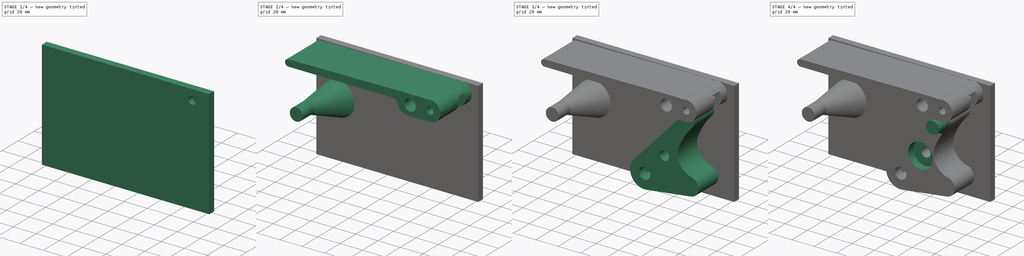
[diagram: build sequence overview — one tinted view per stage of 4, left to right]
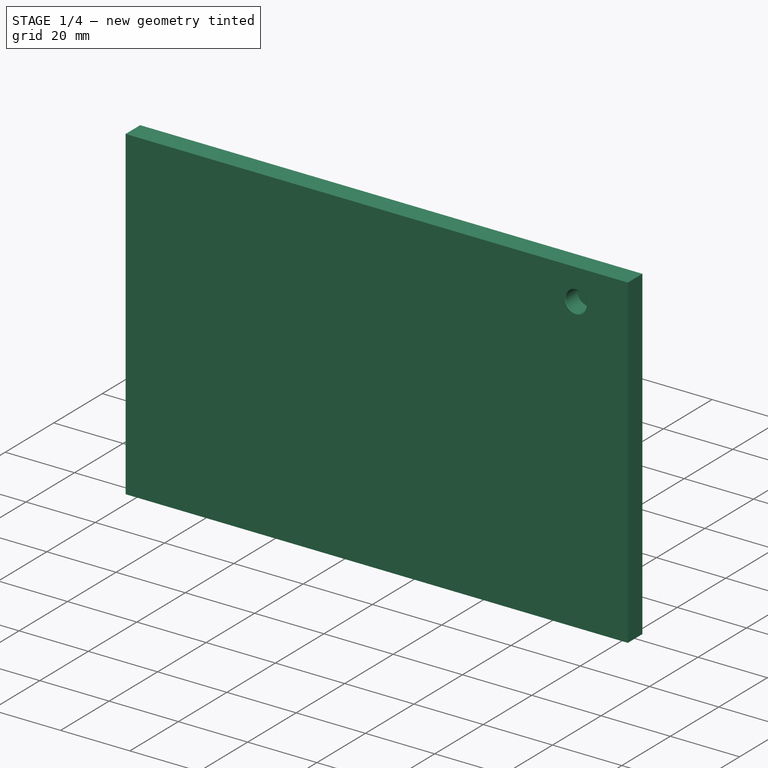
[diagram: stage 1 of 4 — iso view after this stage's code; geometry added in this stage tinted green]
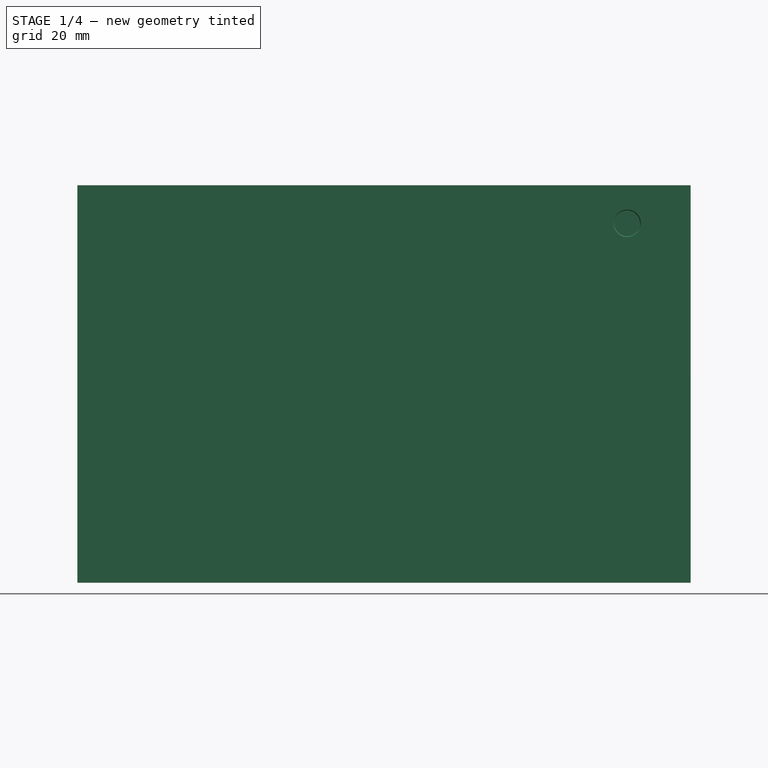
[diagram: stage 1 of 4 — front view after this stage's code; geometry added in this stage tinted green]
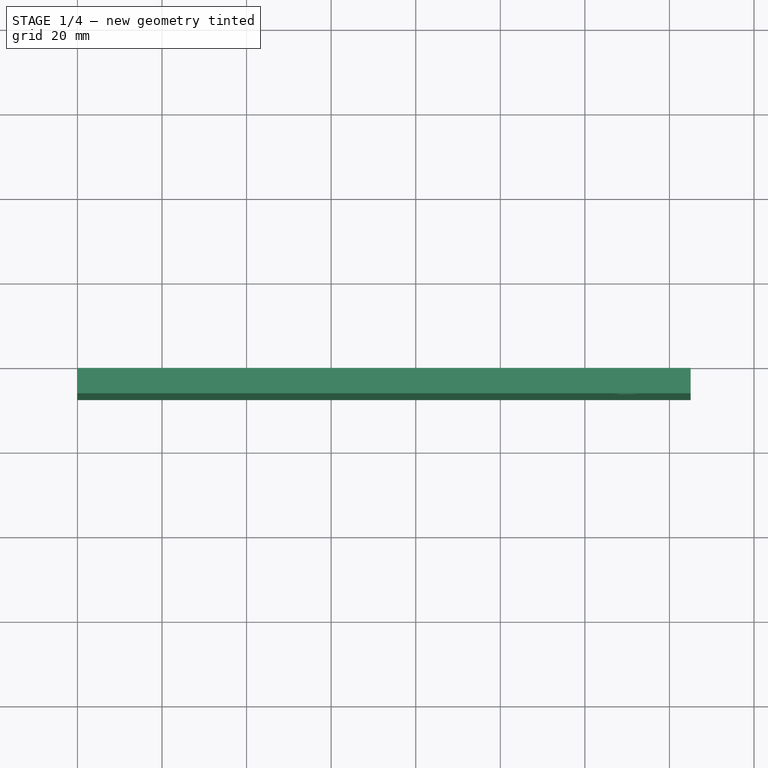
[diagram: stage 1 of 4 — top view after this stage's code; geometry added in this stage tinted green]
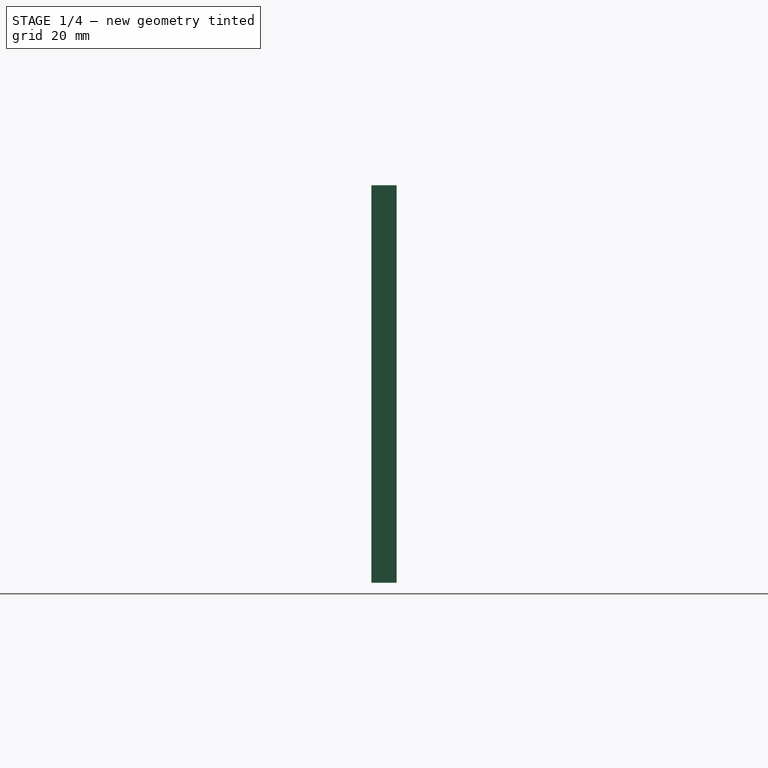
[diagram: stage 1 of 4 — right view after this stage's code; geometry added in this stage tinted green]
FCSTD DOCUMENT  (FreeCAD 0.22R37898 (Git))
Label: lever mechanism v5
License: All rights reserved
LicenseURL: http://en.wikipedia.org/wiki/All_rights_reserved
objects: Sketcher::SketchObject×12, PartDesign::Body×4, PartDesign::Pad×3, PartDesign::Pocket×3, PartDesign::AdditiveLoft×2, PartDesign::Mirrored×1, PartDesign::SubShapeBinder×1, PartDesign::Fillet×1, PartDesign::Hole×1
note: 38 computed .brp shape members not serialized (recipe doc carries the construction recipe); baked Part::Feature solids carry a one-line shape summary decoded from their .brp

FEATURE [Sketcher::SketchObject] Sketch  label="Disc sketch"
  AttachmentSupport = -> [XZ_Plane]
  FullyConstrained = false
  MapMode = 5
  Placement = pos=(0,0,0) rot=(1,0,0;1.5708rad)
  sketch-geometry (18):
    g0: ArcOfCircle CenterX=21.1335 CenterY=33.9614 CenterZ=0 NormalX=0 NormalY=0 NormalZ=1 AngleXU=0 Radius=5.75 StartAngle=5.53981 EndAngle=8.6814
    g1: LineSegment StartX=16.9004 StartY=37.8529 StartZ=0 EndX=-27.296 EndY=-10.2231 EndZ=0
    g2: Circle CenterX=0 CenterY=0 CenterZ=0 NormalX=0 NormalY=0 NormalZ=1 AngleXU=0 Radius=4.15
    g3: Circle CenterX=21.1335 CenterY=33.9614 CenterZ=0 NormalX=0 NormalY=0 NormalZ=1 AngleXU=0 Radius=5.75
    g4: LineSegment StartX=21.1335 StartY=33.9614 StartZ=0 EndX=-13.4804 EndY=-21.6629 EndZ=0
    g5: LineSegment StartX=21.1335 StartY=33.9614 StartZ=0 EndX=-80 EndY=0 EndZ=0
    g6: LineSegment StartX=-80 StartY=0 StartZ=0 EndX=0 EndY=0 EndZ=0
    g7: LineSegment StartX=-17.7255 StartY=-19.0212 StartZ=0 EndX=12.0007 EndY=49.8363 EndZ=0
    g8: LineSegment StartX=30 StartY=50 StartZ=0 EndX=-89.995 EndY=48.9084 EndZ=0
    g9: LineSegment StartX=-13.4804 StartY=-21.6629 StartZ=0 EndX=-17.7255 EndY=-19.0212 EndZ=0
    g10: Circle CenterX=0 CenterY=0 CenterZ=0 NormalX=0 NormalY=0 NormalZ=1 AngleXU=0 Radius=26
    g11: GeomPoint X=24.1714 Y=38.8433 Z=0
    g12: Circle CenterX=-17.7255 CenterY=-19.0212 CenterZ=0 NormalX=0 NormalY=0 NormalZ=1 AngleXU=0 Radius=5.1
    g13: ArcOfCircle CenterX=22.5853 CenterY=-18.8224 CenterZ=0 NormalX=0 NormalY=0 NormalZ=1 AngleXU=0 Radius=8 StartAngle=4.84168 EndAngle=7.6342
    g14: ArcOfCircle CenterX=-17.7255 CenterY=-19.0212 CenterZ=0 NormalX=0 NormalY=0 NormalZ=1 AngleXU=0 Radius=13 StartAngle=2.39821 EndAngle=4.84168
    g15: LineSegment StartX=-16.0495 StartY=-31.9127 StartZ=0 EndX=23.6167 EndY=-26.7556 EndZ=0
    g16: ArcOfCircle CenterX=27.8221 CenterY=4.6206 CenterZ=0 NormalX=0 NormalY=0 NormalZ=1 AngleXU=0 Radius=16.0208 StartAngle=2.74728 EndAngle=4.49261
    g17: ArcOfCircle CenterX=73.9111 CenterY=-14.5572 CenterZ=0 NormalX=0 NormalY=0 NormalZ=1 AngleXU=0 Radius=65.9405 StartAngle=2.39821 EndAngle=2.74728
  constraints (50):
    c: Coincident(g2,g-1)
    c: Diameter(g2) = 8.3
    c: Distance(g3,g2) = 40
    c: Tangent(g1,g0) = -1.5708
    c: Coincident(g4,g0)
    c: PointOnObject(g2,g4)
    c: Coincident(g5,g3)
    c: Coincident(g6,g5)
    c: Coincident(g6,g2)
    c: Distance(g6) = 80  'spring_length'
    c: PointOnObject(g5,g-1)
    c: Diameter(g3) = 11.5  'spring_pin_diameter'
    c: DistanceY(g3,g2) = -33.9614  'spring_pin_y'
    c: DistanceX(g2,g3) = 21.1335  'spring_pin_x'
    c: PointOnObject(g7,g8)
    c: DistanceX(g2,g8) = 30  'lever_anchor_x'
    c: DistanceY(g2,g8) = 50  'lever_anchor_y'
    c: Distance(g8) = 120  'lever_length'
    c: Distance(g7,g8) = 18  'connector_lever_anchor_distance'
    c: Distance(g7) = 75  'lever_connector_length'
    c: Coincident(g9,g7)
    c: Perpendicular(g4,g9)
    c: Coincident(g10,g2)
    c: PointOnObject(g7,g10)
    c: Radius(g10) = 26
    c: Distance(g9) = 5
    c: PointOnObject(g11,g3)
    c: PointOnObject(g11,g0)
    c: PointOnObject(g11,g4)
    c: Coincident(g12,g7)
    c: Diameter(g12) = 10.2  'connector_crossnut_diameter'
    c: Angle(g8,g-1) = -0.00909645  'lever_arm_position'
    c: Equal(g0,g3)
    c: PointOnObject(g0,g3)
    c: Angle(g-1,g4) = 1.01416  'disc_angle'
    c: Coincident(g14,g7)
    c: Angle(g14) = 2.44346
    c: Tangent(g14,g1) = -1.5708
    c: Radius(g14) = 13
    c: Coincident(g9,g4)
    c: Angle(g0) = 3.14159
    c: Tangent(g15,g13) = -1.5708
    c: Tangent(g15,g14) = -1.5708
    c: Distance(g15) = 40
    c: Angle(g13) = 2.79253
    c: Tangent(g16,g13) = 1.5708
    c: Tangent(g17,g0) = 1.5708
    c: Tangent(g17,g16) = -1.5708
    c: Radius(g13) = 8
    c: Angle(g16) = 1.74533
FEATURE [PartDesign::Pad] Pad  label="Disc pad"
  Direction = (0,-1,2e-16)
  Length = 25
  Length2 = 10
  Midplane = true
  Placement = pos=(0,0,0) rot=(1,0,0;1.5708rad)
  Profile = -> Sketch
  ReferenceAxis = -> Sketch [N_Axis]
  Suppressed = false
  Type = 0
FEATURE [PartDesign::Body] Body002  label="Lever"
  AllowCompound = false
  Group = -> [Sketch006,Pad003,Sketch007,Pocket,Fillet]
  Origin = -> Origin002
  Tip = -> Fillet
FEATURE [Sketcher::SketchObject] Sketch012  label="Lever anchor pin hole sketch"
  AttachmentOffset = pos=(0,0,-12.5) rot=(0,0,1;0rad)
  AttachmentSupport = -> [XZ_Plane001]
  FullyConstrained = true
  MapMode = 5
  Placement = pos=(0,12.5,-2.8e-15) rot=(1,0,0;1.5708rad)
  expr: .AttachmentOffset.Base.z = -<<Disc pad>>.Length / 2
  expr: Constraints[0] = <<Disc sketch>>.Constraints.lever_anchor_y
  expr: Constraints[1] = <<Disc sketch>>.Constraints.lever_anchor_x
  sketch-geometry (1):
    g0: Circle CenterX=30 CenterY=50 CenterZ=0 NormalX=0 NormalY=0 NormalZ=1 AngleXU=0 Radius=3.05
  constraints (3):
    c: DistanceY(g-1,g0) = 50
    c: DistanceX(g-1,g0) = 30
    c: Diameter(g0) = 6.1
FEATURE [PartDesign::Pad] Pad004
  Direction = (0,-1,2e-16)
  Length = 6
  Length2 = 10
  Placement = pos=(0,0,0) rot=(1,0,0;1.5708rad)
  Profile = -> Sketch002
  ReferenceAxis = -> Sketch002 [N_Axis]
  Reversed = true
  Suppressed = false
  Type = 0
FEATURE [PartDesign::Hole] Hole
  BaseFeature = -> Pad004
  CustomThreadClearance = 0
  Depth = 5
  DepthType = 0
  Diameter = 6.1
  DrillForDepth = false
  DrillPoint = 0
  DrillPointAngle = 118
  HoleCutCountersinkAngle = 90
  HoleCutCustomValues = false
  HoleCutDepth = 0
  HoleCutDiameter = 6.5
  HoleCutType = 2
  ModelThread = false
  Placement = pos=(0,0,0) rot=(1,0,0;1.5708rad)
  Profile = -> Sketch012
  Suppressed = false
  Tapered = false
  TaperedAngle = 90
  ThreadClass = 0
  ThreadDepth = 5
  ThreadDepthType = 0
  ThreadDirection = 0
  ThreadFit = 0
  ThreadSize = 0
  ThreadType = 0
  Threaded = false
  UseCustomThreadClearance = false
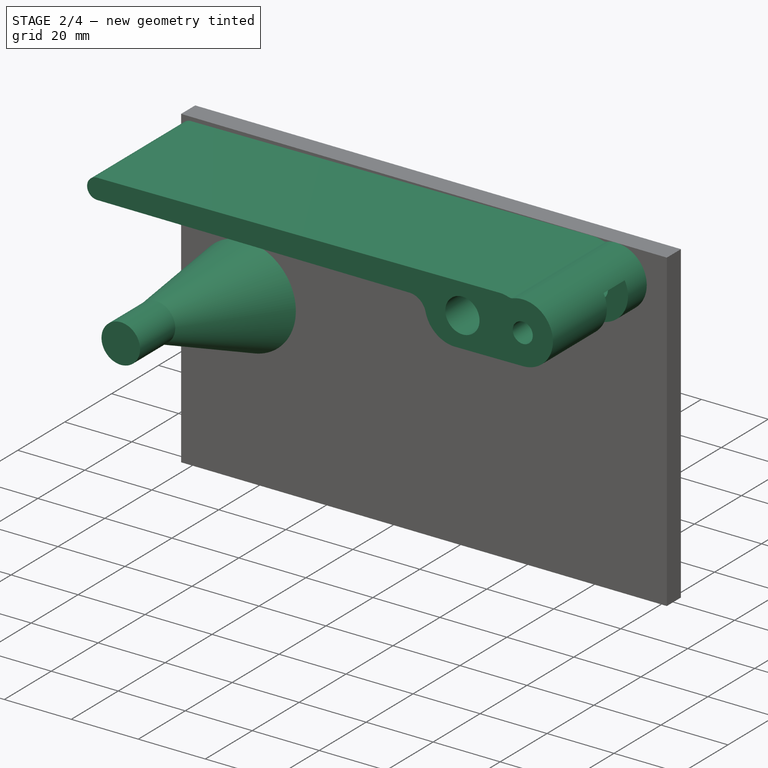
[diagram: stage 2 of 4 — iso view after this stage's code; geometry added in this stage tinted green]
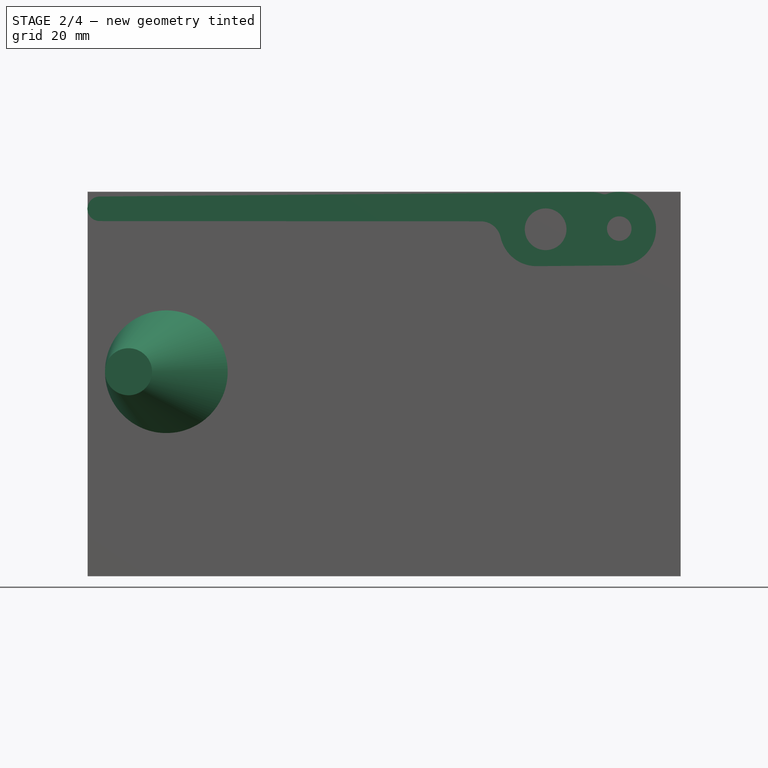
[diagram: stage 2 of 4 — front view after this stage's code; geometry added in this stage tinted green]
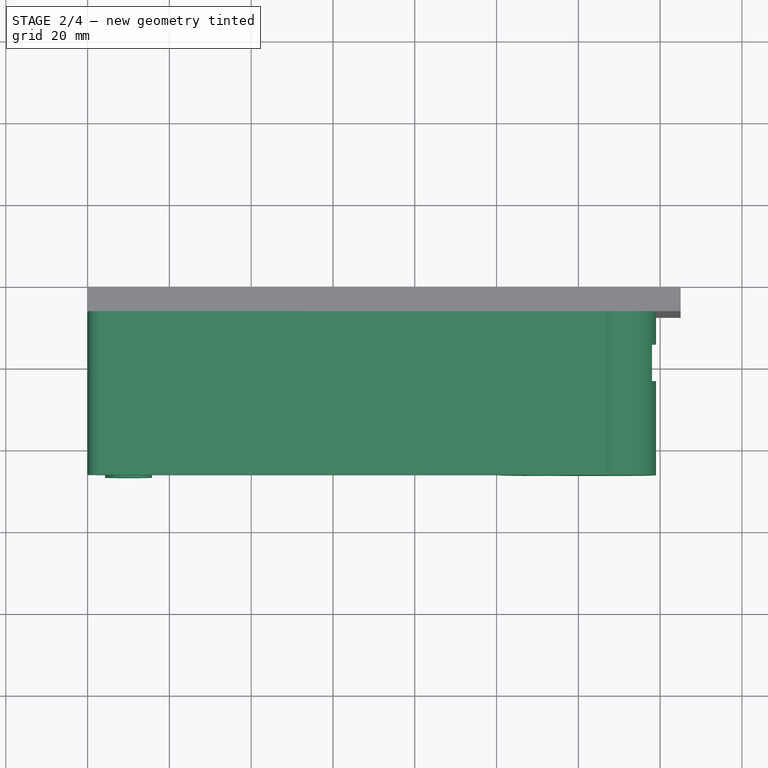
[diagram: stage 2 of 4 — top view after this stage's code; geometry added in this stage tinted green]
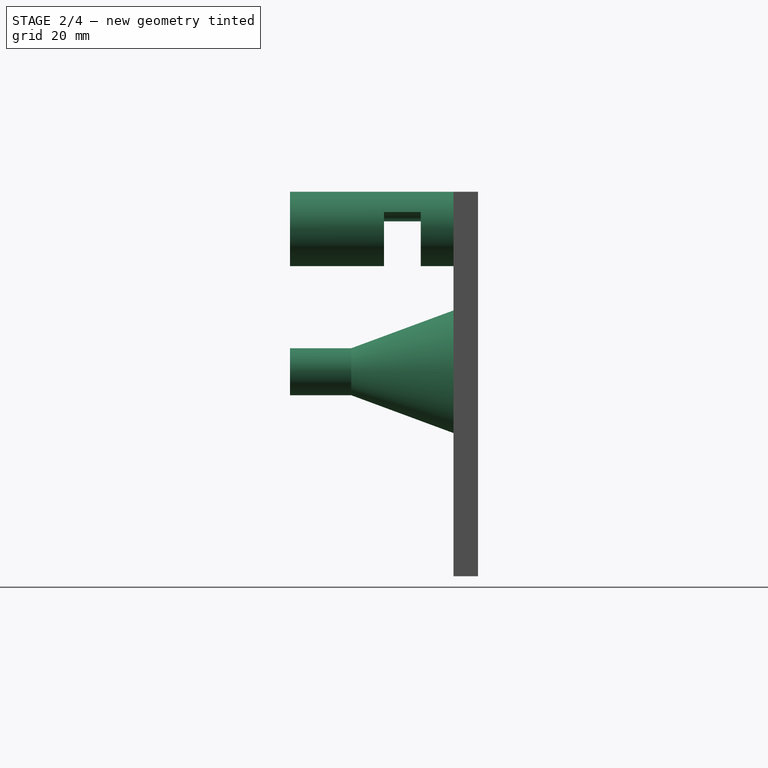
[diagram: stage 2 of 4 — right view after this stage's code; geometry added in this stage tinted green]
FEATURE [Sketcher::SketchObject] Sketch002  label="Mount plate sketch"
  AttachmentOffset = pos=(0,0,-12.5) rot=(0,0,1;0rad)
  AttachmentSupport = -> [XZ_Plane001]
  FullyConstrained = true
  MapMode = 5
  Placement = pos=(0,12.5,-2.8e-15) rot=(1,0,0;1.5708rad)
  expr: .AttachmentOffset.Base.z = -<<Disc pad>>.Length / 2
  sketch-geometry (4):
    g0: LineSegment StartX=-100 StartY=59 StartZ=0 EndX=-100 EndY=-35 EndZ=0
    g1: LineSegment StartX=-100 StartY=-35 StartZ=0 EndX=45 EndY=-35 EndZ=0
    g2: LineSegment StartX=45 StartY=-35 StartZ=0 EndX=45 EndY=59 EndZ=0
    g3: LineSegment StartX=45 StartY=59 StartZ=0 EndX=-100 EndY=59 EndZ=0
  constraints (12):
    c: Coincident(g0,g1)
    c: Coincident(g1,g2)
    c: Coincident(g2,g3)
    c: Coincident(g3,g0)
    c: Vertical(g0)
    c: Vertical(g2)
    c: Horizontal(g1)
    c: Horizontal(g3)
    c: DistanceX(g3,g3) = 145
    c: DistanceY(g2,g2) = 94
    c: DistanceX(g-1,g1) = 45
    c: DistanceY(g1,g-1) = 35
FEATURE [Sketcher::SketchObject] Sketch004  label="Spring pin sketch"
  AttachmentOffset = pos=(0,0,27.5) rot=(0,0,1;0rad)
  AttachmentSupport = -> [XZ_Plane]
  FullyConstrained = true
  MapMode = 5
  Placement = pos=(0,-27.5,6.1e-15) rot=(1,0,0;1.5708rad)
  expr: .AttachmentOffset.Base.z = <<Disc pad>>.Length / 2 + 15 mm
  expr: Constraints[0] = <<Disc sketch>>.Constraints.spring_pin_diameter
  expr: Constraints[1] = <<Disc sketch>>.Constraints.spring_pin_x
  expr: Constraints[2] = <<Disc sketch>>.Constraints.spring_pin_y
  sketch-geometry (1):
    g0: Circle CenterX=21.1335 CenterY=33.9614 CenterZ=0 NormalX=0 NormalY=0 NormalZ=1 AngleXU=0 Radius=5.75
  constraints (3):
    c: Diameter(g0) = 11.5
    c: DistanceX(g-1,g0) = 21.1335
    c: DistanceY(g0,g-1) = -33.9614
FEATURE [Sketcher::SketchObject] Sketch005  label="Spring holder pin sketch"
  AttachmentOffset = pos=(0,0,27.5) rot=(0,0,1;0rad)
  AttachmentSupport = -> [XZ_Plane001]
  FullyConstrained = true
  MapMode = 5
  Placement = pos=(0,-27.5,6.1e-15) rot=(1,0,0;1.5708rad)
  expr: .AttachmentOffset.Base.z = -<<Spring pin sketch>>.Placement.Base.y
  expr: Constraints[1] = <<Disc sketch>>.Constraints.spring_length + 10 mm
  sketch-geometry (1):
    g0: Circle CenterX=-90 CenterY=15 CenterZ=0 NormalX=0 NormalY=0 NormalZ=1 AngleXU=0 Radius=5.75
  constraints (3):
    c: Diameter(g0) = 11.5
    c: DistanceX(g0,g-1) = 90
    c: DistanceY(g-1,g0) = 15
FEATURE [Sketcher::SketchObject] Sketch006
  AttachmentOffset = pos=(0,0,-12.5) rot=(0,0,1;0rad)
  AttachmentSupport = -> [XZ_Plane002]
  FullyConstrained = true
  MapMode = 5
  Placement = pos=(0,12.5,-2.8e-15) rot=(1,0,0;1.5708rad)
  expr: .AttachmentOffset.Base.z = -<<Disc pad>>.Length / 2
  expr: Constraints[0] = <<Disc sketch>>.Constraints.lever_anchor_y
  expr: Constraints[1] = <<Disc sketch>>.Constraints.lever_anchor_x
  expr: Constraints[2] = <<Disc sketch>>.Constraints.connector_lever_anchor_distance
  expr: Constraints[31] = <<Disc sketch>>.Constraints.lever_arm_position
  sketch-geometry (13):
    g0: ArcOfCircle CenterX=30 CenterY=50 CenterZ=0 NormalX=0 NormalY=0 NormalZ=1 AngleXU=0 Radius=9 StartAngle=4.72149 EndAngle=8.18689
    g1: Circle CenterX=30 CenterY=50 CenterZ=0 NormalX=0 NormalY=0 NormalZ=1 AngleXU=0 Radius=3
    g2: Circle CenterX=12.0007 CenterY=49.8363 CenterZ=0 NormalX=0 NormalY=0 NormalZ=1 AngleXU=0 Radius=5.1
    g3: LineSegment StartX=30.0819 StartY=41.0004 StartZ=0 EndX=9.86483 EndY=40.8165 EndZ=0
    g4: ArcOfCircle CenterX=-3.88406 CenterY=46.7809 CenterZ=0 NormalX=0 NormalY=0 NormalZ=1 AngleXU=0 Radius=5 StartAngle=0.218536 EndAngle=1.57011
    g5: LineSegment StartX=-97.0514 StartY=51.8445 StartZ=0 EndX=-3.88064 EndY=51.7809 EndZ=0
    g6: LineSegment StartX=-97.0766 StartY=57.8444 StartZ=0 EndX=22.9184 EndY=58.936 EndZ=0
    g7: ArcOfCircle CenterX=23.0003 CenterY=49.9363 CenterZ=0 NormalX=0 NormalY=0 NormalZ=1 AngleXU=0 Radius=9 StartAngle=1.25608 EndAngle=1.57989
    g8: ArcOfCircle CenterX=26.4053 CenterY=60.3961 CenterZ=0 NormalX=0 NormalY=0 NormalZ=1 AngleXU=0 Radius=2 StartAngle=4.39767 EndAngle=5.0453
    g9: LineSegment StartX=-97.0766 StartY=57.8444 StartZ=0 EndX=29.9181 EndY=58.9996 EndZ=0
    g10: LineSegment StartX=30 StartY=50 StartZ=0 EndX=12.0007 EndY=49.8363 EndZ=0
    g11: ArcOfCircle CenterX=9.78296 CenterY=49.8161 CenterZ=0 NormalX=0 NormalY=0 NormalZ=1 AngleXU=0 Radius=9 StartAngle=3.36013 EndAngle=4.72149
    g12: ArcOfCircle CenterX=-97.0493 CenterY=54.8445 CenterZ=0 NormalX=0 NormalY=0 NormalZ=1 AngleXU=0 Radius=3 StartAngle=1.57989 EndAngle=4.71171
  constraints (33):
    c: DistanceY(g-1,g0) = 50
    c: DistanceX(g-1,g0) = 30
    c: Distance(g0,g2) = 18
    c: Diameter(g1) = 6
    c: Diameter(g2) = 10.2
    c: Diameter(g0) = 18
    c: Tangent(g3,g0) = 1.5708
    c: Coincident(g1,g0)
    c: Radius(g4) = 5
    c: Tangent(g5,g4) = 1.5708
    c: Tangent(g7,g6) = 1.5708
    c: Tangent(g8,g7) = 1.5708
    c: Radius(g8) = 2
    c: Equal(g7,g0)
    c: PointOnObject(g6,g9)
    c: Tangent(g8,g0) = 1.5708
    c: Distance(g9,g6) = 7
    c: Tangent(g9,g0) = 1.5708
    c: Coincident(g10,g0)
    c: PointOnObject(g11,g10)
    c: Tangent(g11,g3) = 1.5708
    c: Angle(g11) = 1.36136
    c: Tangent(g11,g4) = 1.5708
    c: Distance(g4,g2) = 16
    c: Coincident(g6,g9)
    c: Parallel(g10,g6)
    c: Diameter(g12) = 6
    c: Tangent(g12,g6) = 1.5708
    c: Tangent(g5,g12) = -1.5708
    c: Coincident(g10,g2)
    c: Distance(g6) = 120
    c: Angle(g10,g-1) = -0.00909645
    c: Parallel(g10,g3)
FEATURE [PartDesign::Pad] Pad003
  Direction = (0,-1,2e-16)
  Length = 40
  Length2 = 10
  Placement = pos=(0,0,0) rot=(1,0,0;1.5708rad)
  Profile = -> Sketch006
  ReferenceAxis = -> Sketch006 [N_Axis]
  Suppressed = false
  Type = 0
FEATURE [Sketcher::SketchObject] Sketch007
  AttachmentSupport = -> [XZ_Plane002]
  ExternalGeometry = -> [Sketch006]
  FullyConstrained = true
  MapMode = 5
  Placement = pos=(0,0,0) rot=(1,0,0;1.5708rad)
  expr: Constraints[5] = <<Disc sketch>>.Constraints.lever_arm_position
  expr: Constraints[6] = <<Disc sketch>>.Constraints.lever_anchor_y
  expr: Constraints[7] = <<Disc sketch>>.Constraints.lever_anchor_x
  sketch-geometry (8):
    g0: LineSegment StartX=-3.77068 StartY=39.6924 StartZ=0 EndX=42.0905 EndY=40.1096 EndZ=0
    g1: LineSegment StartX=42.0905 StartY=40.1096 StartZ=0 EndX=41.9631 EndY=54.109 EndZ=0
    g2: LineSegment StartX=41.9631 StartY=54.109 StartZ=0 EndX=-1.9871 EndY=53.7092 EndZ=0
    g3: GeomPoint X=30 Y=50 Z=0
    g4: LineSegment StartX=30 StartY=50 StartZ=0 EndX=29.9636 EndY=53.9998 EndZ=0
    g5: LineSegment StartX=30 StartY=50 StartZ=0 EndX=41.9995 EndY=50.1092 EndZ=0
    g6: LineSegment StartX=-3.77068 StartY=39.6924 StartZ=0 EndX=-3.88064 EndY=51.7809 EndZ=0
    g7: ArcOfCircle CenterX=-1.96972 CenterY=51.7983 CenterZ=0 NormalX=0 NormalY=0 NormalZ=1 AngleXU=0 Radius=1.911 StartAngle=1.57989 EndAngle=3.15069
  constraints (21):
    c: Coincident(g0,g1)
    c: Coincident(g1,g2)
    c: Parallel(g2,g0)
    c: Perpendicular(g2,g1)
    c: Distance(g1) = 14
    c: Angle(g0,g-1) = -0.00909645
    c: DistanceY(g-1,g3) = 50
    c: DistanceX(g-1,g3) = 30
    c: Coincident(g4,g3)
    c: PointOnObject(g4,g2)
    c: Coincident(g5,g3)
    c: PointOnObject(g5,g1)
    c: Perpendicular(g2,g4)
    c: Perpendicular(g1,g5)
    c: Distance(g4) = 4
    c: Distance(g5) = 12
    c: Coincident(g6,g0)
    c: Perpendicular(g6,g0)
    c: Tangent(g7,g6) = 1.5708
    c: Tangent(g7,g2) = -1.5708
    c: Coincident(g6,g-3)
FEATURE [PartDesign::Pocket] Pocket
  BaseFeature = -> Pad003
  Direction = (0,1,-2e-16)
  Length = 9
  Length2 = 5
  Midplane = true
  Placement = pos=(0,0,0) rot=(1,0,0;1.5708rad)
  Profile = -> Sketch007
  ReferenceAxis = -> Sketch007 [N_Axis]
  Suppressed = false
  Type = 0
FEATURE [Sketcher::SketchObject] Sketch013  label="Spring holder pin sketch001"
  AttachmentOffset = pos=(0,0,-12.5) rot=(0,0,1;0rad)
  AttachmentSupport = -> [XZ_Plane001]
  ExternalGeometry = -> [Sketch005]
  FullyConstrained = true
  MapMode = 5
  Placement = pos=(0,12.5,-2.8e-15) rot=(1,0,0;1.5708rad)
  expr: .AttachmentOffset.Base.z = -<<Mount plate sketch>>.Placement.Base.y
  sketch-geometry (1):
    g0: Circle CenterX=-80.75 CenterY=15 CenterZ=0 NormalX=0 NormalY=0 NormalZ=1 AngleXU=0 Radius=15
  constraints (3):
    c: Diameter(g0) = 30
    c: DistanceY(g-1,g0) = 15
    c: Tangent(g0,g-3)
FEATURE [Sketcher::SketchObject] Sketch014  label="Spring holder pin sketch002"
  AttachmentOffset = pos=(0,0,12.5) rot=(0,0,1;0rad)
  AttachmentSupport = -> [XZ_Plane001]
  FullyConstrained = true
  MapMode = 5
  Placement = pos=(0,-12.5,2.8e-15) rot=(1,0,0;1.5708rad)
  expr: .AttachmentOffset.Base.z = -<<Spring pin sketch>>.Placement.Base.y - 15 mm
  expr: Constraints[1] = <<Disc sketch>>.Constraints.spring_length + 10 mm
  sketch-geometry (1):
    g0: Circle CenterX=-90 CenterY=15 CenterZ=0 NormalX=0 NormalY=0 NormalZ=1 AngleXU=0 Radius=5.75
  constraints (3):
    c: Diameter(g0) = 11.5
    c: DistanceX(g0,g-1) = 90
    c: DistanceY(g-1,g0) = 15
FEATURE [PartDesign::AdditiveLoft] AdditiveLoft001
  BaseFeature = -> Hole
  Closed = false
  Placement = pos=(0,0,0) rot=(1,0,0;1.5708rad)
  Profile = -> Sketch013
  Ruled = true
  Sections = -> [Sketch014,Sketch005]
  Suppressed = false
FEATURE [PartDesign::Body] Body001  label="Corpo"
  AllowCompound = false
  Group = -> [Sketch002,Sketch005,Sketch012,Pad004,Hole,Sketch013,Sketch014,AdditiveLoft001]
  Origin = -> Origin001
  Tip = -> AdditiveLoft001
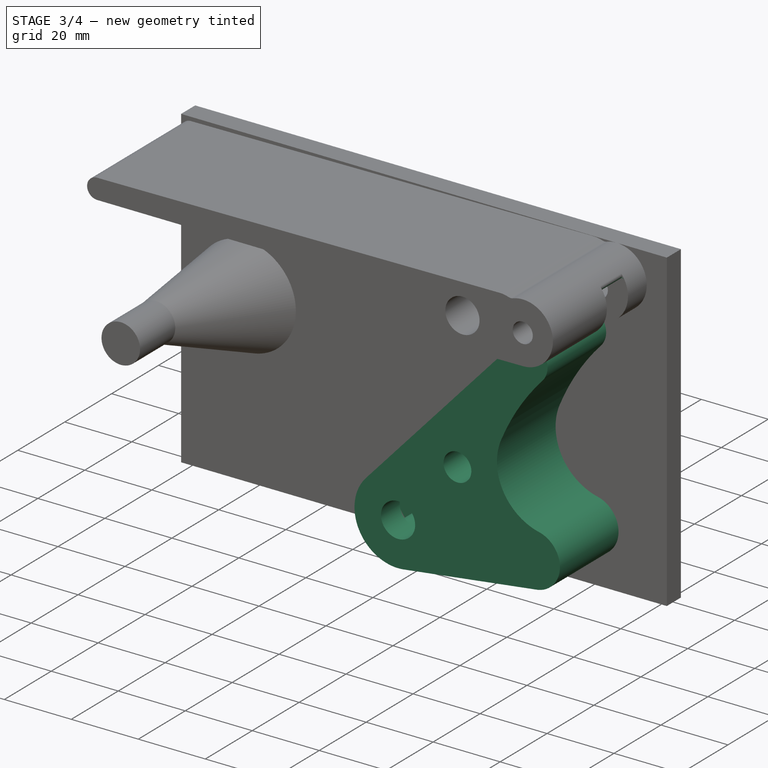
[diagram: stage 3 of 4 — iso view after this stage's code; geometry added in this stage tinted green]
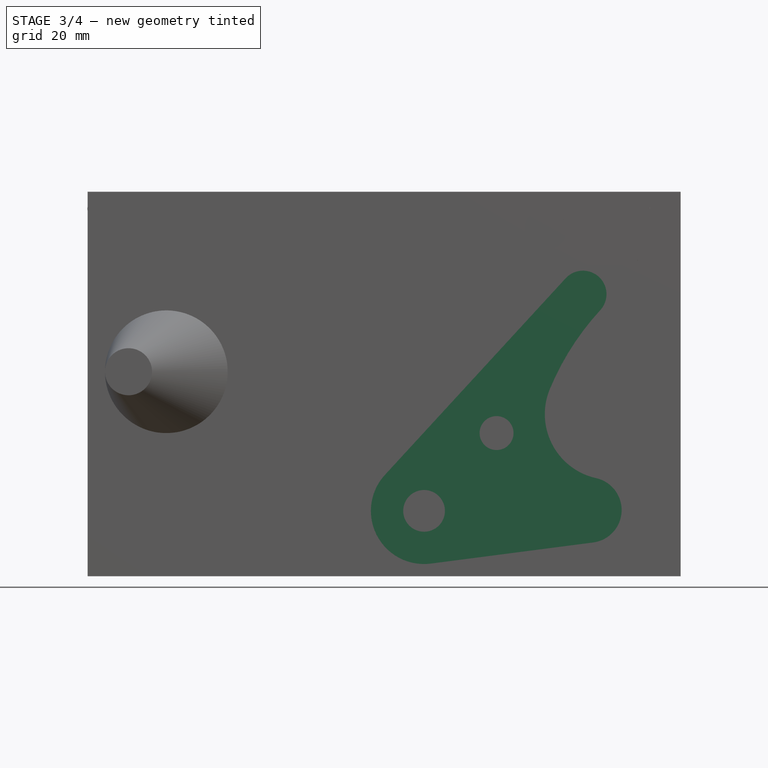
[diagram: stage 3 of 4 — front view after this stage's code; geometry added in this stage tinted green]
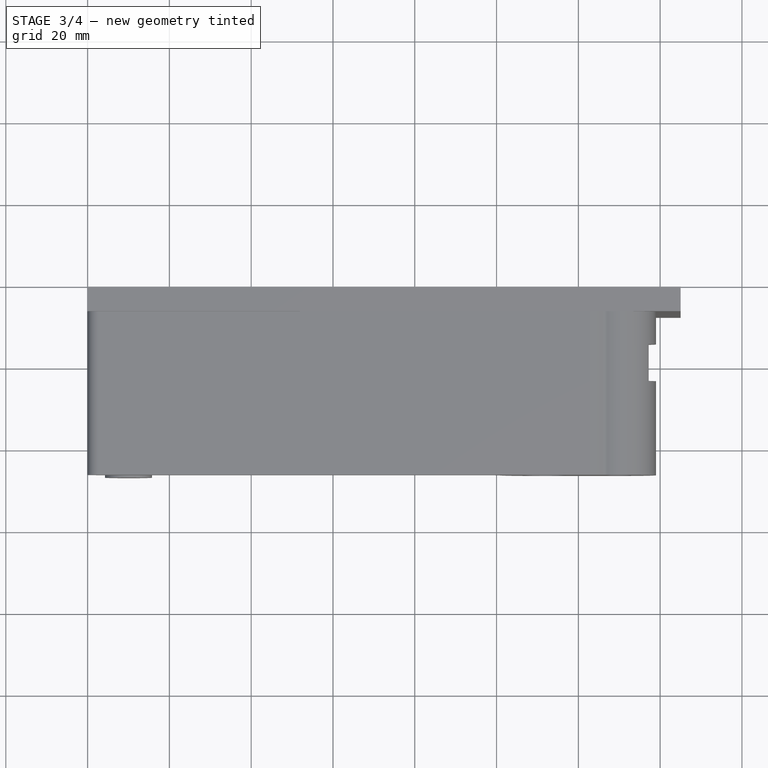
[diagram: stage 3 of 4 — top view after this stage's code; geometry added in this stage tinted green]
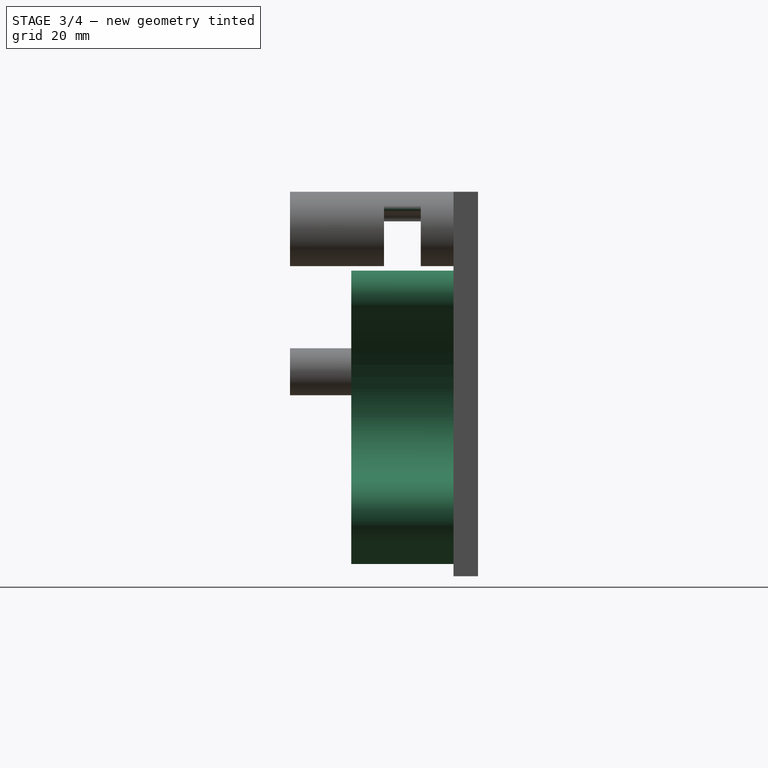
[diagram: stage 3 of 4 — right view after this stage's code; geometry added in this stage tinted green]
FEATURE [Sketcher::SketchObject] Sketch008  label="Connector pocket sketch"
  AttachmentSupport = -> [XZ_Plane]
  ExternalGeometry = -> [Sketch]
  FullyConstrained = true
  MapMode = 5
  Placement = pos=(0,0,0) rot=(1,0,0;1.5708rad)
  sketch-geometry (6):
    g0: ArcOfCircle CenterX=-17.7255 CenterY=-19.0212 CenterZ=0 NormalX=0 NormalY=0 NormalZ=1 AngleXU=0 Radius=5.1 StartAngle=4.31808 EndAngle=6.11846
    g1: ArcOfCircle CenterX=56.3579 CenterY=-31.3361 CenterZ=0 NormalX=0 NormalY=0 NormalZ=1 AngleXU=0 Radius=70 StartAngle=2.58642 EndAngle=2.97687
    g2: LineSegment StartX=16.9004 StartY=37.8529 StartZ=0 EndX=-27.296 EndY=-10.2231 EndZ=0
    g3: LineSegment StartX=16.9004 StartY=37.8529 StartZ=0 EndX=-3.1289 EndY=5.56004 EndZ=0
    g4: ArcOfCircle CenterX=-17.7255 CenterY=-19.0212 CenterZ=0 NormalX=0 NormalY=0 NormalZ=1 AngleXU=0 Radius=13 StartAngle=2.39821 EndAngle=4.31808
    g5: ArcOfCircle CenterX=-21.2023 CenterY=-27.3767 CenterZ=0 NormalX=0 NormalY=0 NormalZ=1 AngleXU=0 Radius=3.95 StartAngle=1.17648 EndAngle=4.31808
  constraints (14):
    c: Coincident(g2,g3)
    c: Tangent(g3,g1) = -1.5708
    c: Radius(g1) = 70
    c: Distance(g3) = 38
    c: Tangent(g0,g5) = 1.5708
    c: Tangent(g0,g1) = 1.5708
    c: Tangent(g5,g4) = -1.5708
    c: Coincident(g0,g4)
    c: Coincident(g2,g-3)
    c: Coincident(g2,g-3)
    c: Coincident(g0,g-4)
    c: Equal(g0,g-4)
    c: Coincident(g4,g2)
    c: Angle(g4) = 1.91986
FEATURE [PartDesign::Pocket] Pocket001  label="Connector pocket"
  BaseFeature = -> Pad
  Direction = (0,1,-2e-16)
  Length = 9
  Length2 = 5
  Midplane = true
  Placement = pos=(0,0,0) rot=(1,0,0;1.5708rad)
  Profile = -> Sketch008
  ReferenceAxis = -> Sketch008 [N_Axis]
  Suppressed = false
  Type = 0
FEATURE [PartDesign::Body] Body  label="Bi-stable disc"
  AllowCompound = false
  Group = -> [Sketch,Pad,Sketch004,Sketch008,Pocket001,Sketch010,Pocket003,Mirrored,Sketch011,Binder,AdditiveLoft]
  Origin = -> Origin
FEATURE [PartDesign::Fillet] Fillet
  Base = -> Pocket [Edge30]
  BaseFeature = -> Pocket
  Placement = pos=(0,0,0) rot=(1,0,0;1.5708rad)
  Radius = 1
  SupportTransform = false
  Suppressed = false
  UseAllEdges = false
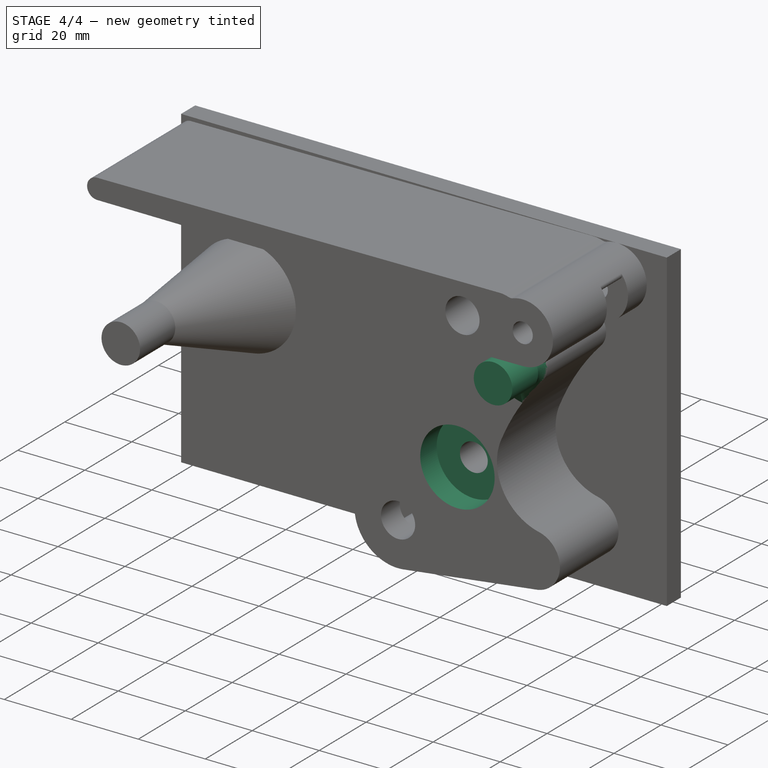
[diagram: stage 4 of 4 — iso view after this stage's code; geometry added in this stage tinted green]
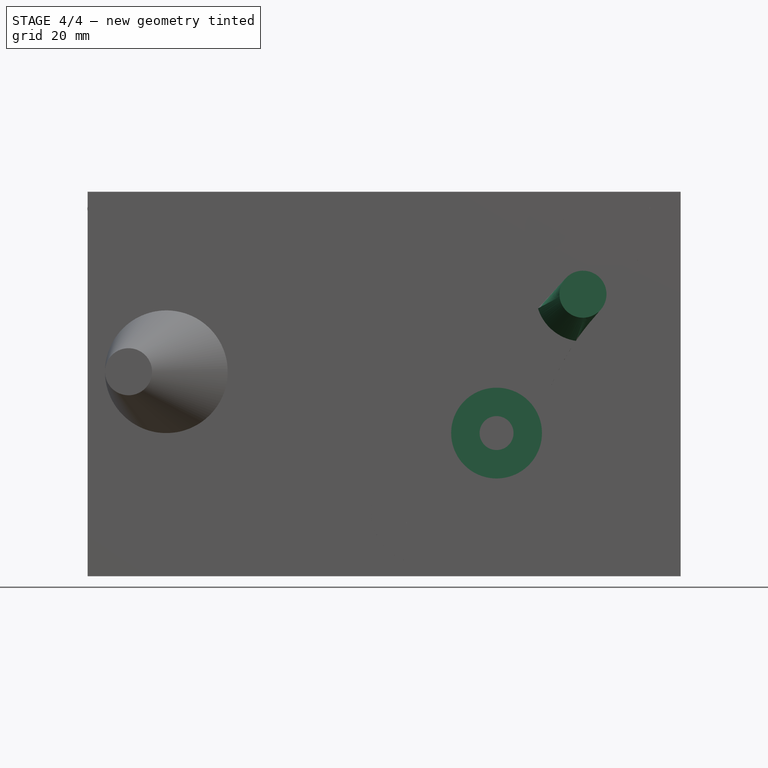
[diagram: stage 4 of 4 — front view after this stage's code; geometry added in this stage tinted green]
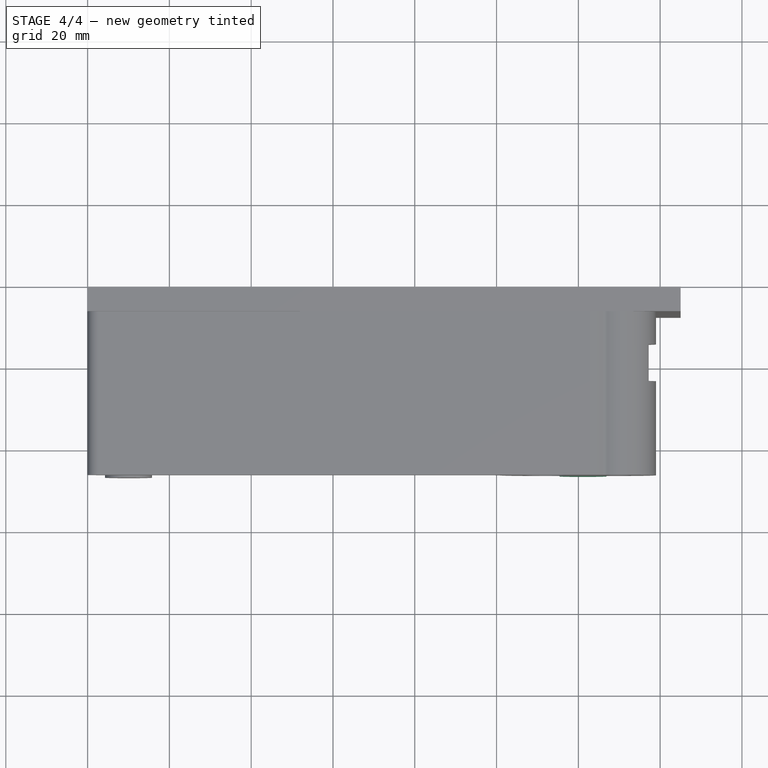
[diagram: stage 4 of 4 — top view after this stage's code; geometry added in this stage tinted green]
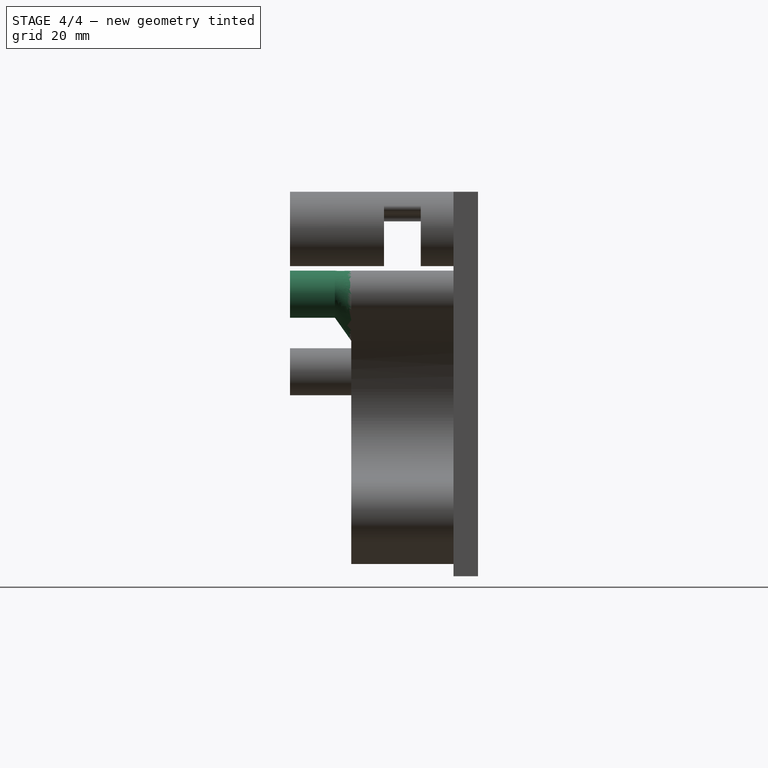
[diagram: stage 4 of 4 — right view after this stage's code; geometry added in this stage tinted green]
FEATURE [PartDesign::Body] Body003  label="Corpo001"
  AllowCompound = false
  Origin = -> Origin003
FEATURE [Sketcher::SketchObject] Sketch010  label="Axle bearing pocket sketch"
  AttachmentOffset = pos=(0,0,12.5) rot=(0,0,1;0rad)
  AttachmentSupport = -> [XZ_Plane]
  FullyConstrained = true
  MapMode = 5
  Placement = pos=(0,-12.5,2.8e-15) rot=(1,0,0;1.5708rad)
  expr: .AttachmentOffset.Base.z = <<Disc pad>>.Length / 2
  sketch-geometry (1):
    g0: Circle CenterX=0 CenterY=0 CenterZ=0 NormalX=0 NormalY=0 NormalZ=1 AngleXU=0 Radius=11.1
  constraints (2):
    c: Diameter(g0) = 22.2
    c: Coincident(g0,g-1)
FEATURE [PartDesign::Pocket] Pocket003  label="Axle bearing pocket"
  BaseFeature = -> Pocket001
  Direction = (0,1,-2e-16)
  Length = 7
  Length2 = 5
  Placement = pos=(0,0,0) rot=(1,0,0;1.5708rad)
  Profile = -> Sketch010
  ReferenceAxis = -> Sketch010 [N_Axis]
  Suppressed = false
  Type = 0
FEATURE [PartDesign::Mirrored] Mirrored
  BaseFeature = -> Pocket003
  MirrorPlane = -> XZ_Plane
  Originals = -> [Pocket003]
  Placement = pos=(0,0,0) rot=(1,0,0;1.5708rad)
  Refine = true
  Suppressed = false
  TransformMode = 0
FEATURE [Sketcher::SketchObject] Sketch011
  AttachmentOffset = pos=(0,0,12.5) rot=(0,0,1;0rad)
  AttachmentSupport = -> [XZ_Plane]
  ExternalGeometry = -> [Sketch004,Sketch]
  FullyConstrained = true
  MapMode = 5
  Placement = pos=(0,-12.5,2.8e-15) rot=(1,0,0;1.5708rad)
  expr: .AttachmentOffset.Base.z = <<Disc pad>>.Length / 2
  sketch-geometry (7):
    g0: ArcOfCircle CenterX=21.1335 CenterY=33.9614 CenterZ=0 NormalX=0 NormalY=0 NormalZ=1 AngleXU=0 Radius=5.75 StartAngle=5.53981 EndAngle=8.6814
    g1: LineSegment StartX=10.1289 StartY=30.487 StartZ=0 EndX=16.9004 EndY=37.8529 EndZ=0
    g2: ArcOfCircle CenterX=21.1335 CenterY=33.9614 CenterZ=0 NormalX=0 NormalY=0 NormalZ=1 AngleXU=0 Radius=11.54 StartAngle=3.44741 EndAngle=4.56191
    g3: ArcOfCircle CenterX=73.9111 CenterY=-14.5572 CenterZ=0 NormalX=0 NormalY=0 NormalZ=1 AngleXU=0 Radius=65.9405 StartAngle=2.39821 EndAngle=2.54387
    g4: LineSegment StartX=10.1289 StartY=30.487 StartZ=0 EndX=21.1335 EndY=33.9614 EndZ=0
    g5: LineSegment StartX=21.1335 StartY=33.9614 StartZ=0 EndX=19.4035 EndY=22.5518 EndZ=0
    g6: LineSegment StartX=19.4035 StartY=22.5518 StartZ=0 EndX=10.1289 EndY=30.487 EndZ=0
  constraints (17):
    c: Coincident(g1,g2)
    c: Tangent(g1,g0) = 1.5708
    c: Coincident(g3,g2)
    c: Coincident(g2,g0)
    c: Tangent(g3,g0) = 1.5708
    c: Coincident(g4,g1)
    c: Coincident(g4,g0)
    c: Coincident(g5,g0)
    c: Coincident(g5,g2)
    c: Coincident(g6,g2)
    c: Coincident(g6,g1)
    c: Distance(g4) = 11.54
    c: Coincident(g0,g-3)
    c: Equal(g0,g-3)
    c: PointOnObject(g1,g-4)
    c: PointOnObject(g2,g-5)
    c: Equal(g3,g-5)
FEATURE [PartDesign::SubShapeBinder] Binder
  BindCopyOnChange = 0
  BindMode = 0
  ClaimChildren = false
  Context = -> Body [Binder.]
  Fuse = false
  MakeFace = true
  OffsetFill = false
  OffsetIntersection = false
  OffsetJoinType = 0
  OffsetOpenResult = false
  PartialLoad = false
  Placement = pos=(0,11,0) rot=(0,0,1;0rad)
  Relative = true
  Support = -> [Sketch004]
  _Version = 2
FEATURE [PartDesign::AdditiveLoft] AdditiveLoft
  BaseFeature = -> Mirrored
  Closed = false
  Placement = pos=(0,0,0) rot=(1,0,0;1.5708rad)
  Profile = -> Sketch004
  Ruled = true
  Sections = -> [Binder,Sketch011]
  Suppressed = false
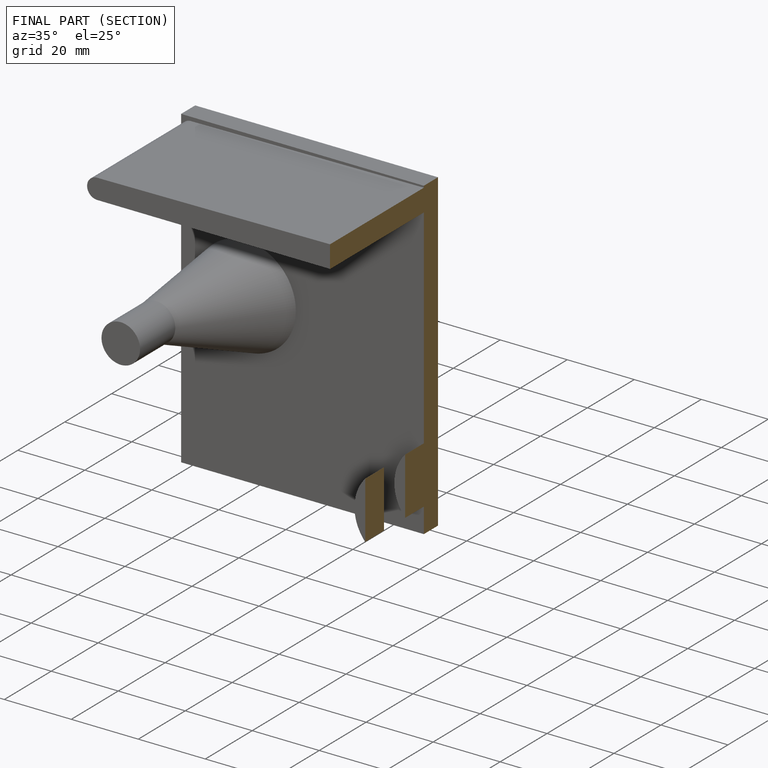
[diagram: finished part — half-section view (interior)]
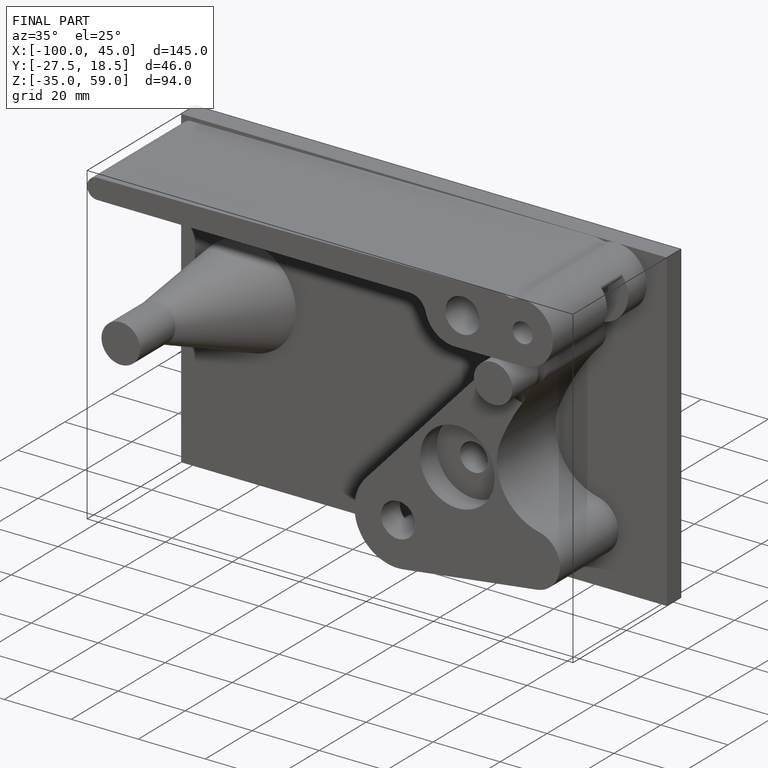
[diagram: finished part — iso view with bounding-box wireframe]
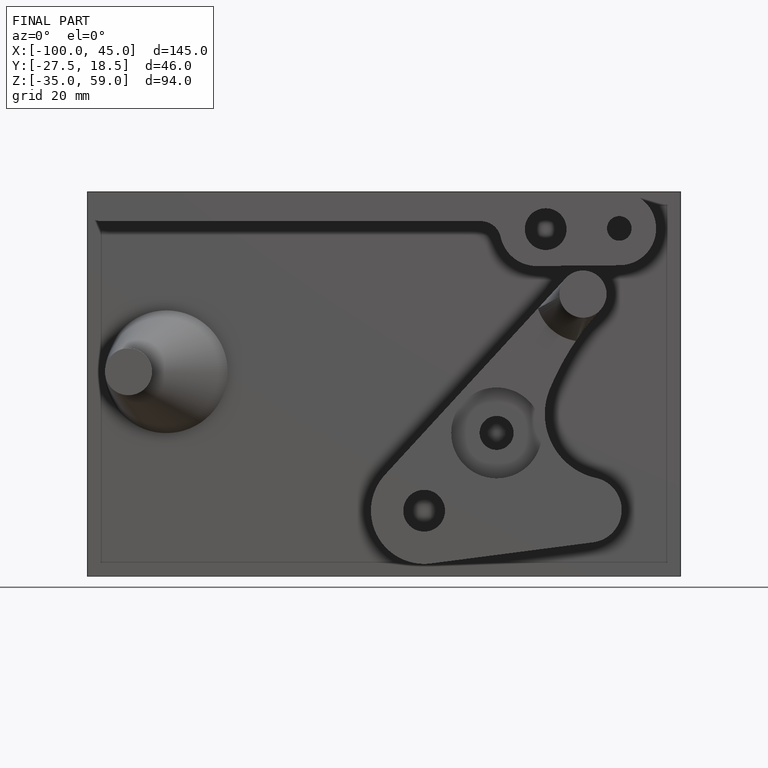
[diagram: finished part — front view with bounding-box wireframe]
